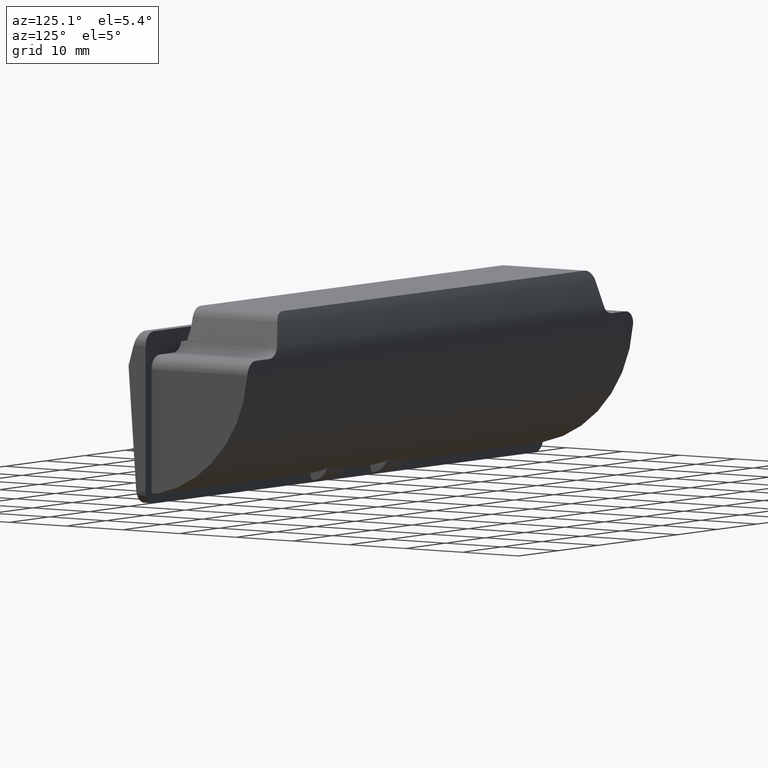
[diagram: clean part render]
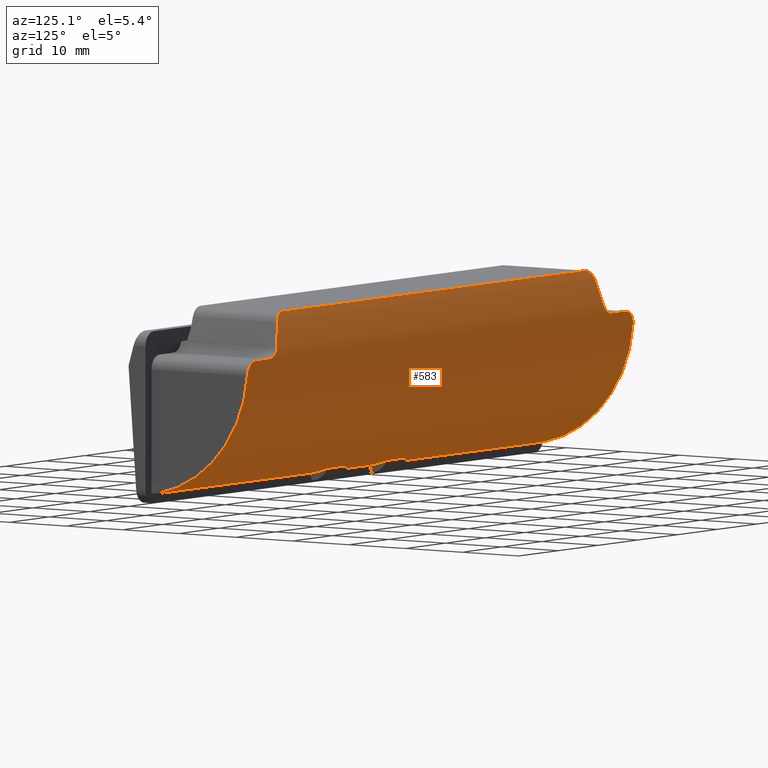
[diagram: same view with one face highlighted and labeled with its STEP entity id]
A machine part, auxiliary view. The second image highlights one B-rep face of the part: STEP entity #583.
In plain terms, the highlighted cylindrical surface (partial cylindrical patch) has radius 20 mm, axis along (-1, 0, 0).
Its self-contained STEP definition (entity closure, byte-faithful):
#5 = DIRECTION ( 'NONE',  ( 1.000000000000000000, -0.0000000000000000000, -0.0000000000000000000 ) ) ;
#29 = CARTESIAN_POINT ( 'NONE',  ( -42.76305940867310800, 16.99591752676730000, -6.499999999999999100 ) ) ;
#30 = CARTESIAN_POINT ( 'NONE',  ( -38.86052458275078400, 15.83612961934067300, -0.1807655854775082600 ) ) ;
#36 = EDGE_CURVE ( 'NONE', #1107, #1397, #459, .T. ) ;
#58 = DIRECTION ( 'NONE',  ( 0.0000000000000000000, 0.0000000000000000000, -1.000000000000000000 ) ) ;
#71 = CARTESIAN_POINT ( 'NONE',  ( 48.09877708661533500, 16.99749686359290400, -7.270368793566437800 ) ) ;
#95 = CARTESIAN_POINT ( 'NONE',  ( -39.93440920544705400, 16.23109859924504800, -1.411828667703528100 ) ) ;
#97 = ORIENTED_EDGE ( 'NONE', *, *, #36, .F. ) ;
#106 = EDGE_CURVE ( 'NONE', #2253, #563, #579, .T. ) ;
#123 = ORIENTED_EDGE ( 'NONE', *, *, #106, .T. ) ;
#138 = CARTESIAN_POINT ( 'NONE',  ( 39.87256500536617700, 16.17369632498519700, -1.210834880760012400 ) ) ;
#139 = LINE ( 'NONE', #1245, #2233 ) ;
#144 = VERTEX_POINT ( 'NONE', #1478 ) ;
#192 = ORIENTED_EDGE ( 'NONE', *, *, #437, .F. ) ;
#208 = VERTEX_POINT ( 'NONE', #889 ) ;
#214 = VECTOR ( 'NONE', #1113, 1000.000000000000000 ) ;
#228 = ORIENTED_EDGE ( 'NONE', *, *, #1104, .F. ) ;
#247 = CARTESIAN_POINT ( 'NONE',  ( -38.55992765960833400, 15.79636537698325700, -0.07049077837578729400 ) ) ;
#251 = B_SPLINE_CURVE_WITH_KNOTS ( 'NONE', 3,
 ( #1060, #1908, #862, #2327, #1072, #2547, #1272, #30, #1481, #247, #1699, #467, #1918, #663 ),
 .UNSPECIFIED., .F., .F.,
 ( 4, 2, 2, 2, 2, 2, 4 ),
 ( 6.505213034913026600E-019, 0.0006451127414014700400, 0.001290225482802939400, 0.001612781853503675500, 0.001935338224204411300, 0.002257894594905146700, 0.002580450965605883200 ),
 .UNSPECIFIED. ) ;
#264 = VERTEX_POINT ( 'NONE', #453 ) ;
#274 = CIRCLE ( 'NONE', #729, 20.00000000000000000 ) ;
#280 = CARTESIAN_POINT ( 'NONE',  ( 46.76204048342106700, 16.99619143582836100, -6.512963977569591600 ) ) ;
#282 = VERTEX_POINT ( 'NONE', #389 ) ;
#288 = CARTESIAN_POINT ( 'NONE',  ( -38.02285107557914800, 15.77055281608030100, -9.298682801528459900E-008 ) ) ;
#299 = CARTESIAN_POINT ( 'NONE',  ( 951.5000000000000000, 0.9999999887767840900, -26.49999994455625100 ) ) ;
#319 = CARTESIAN_POINT ( 'NONE',  ( -41.06559079455280400, 16.91739110543665300, -5.088171332296570700 ) ) ;
#331 = CARTESIAN_POINT ( 'NONE',  ( -48.50000000000000000, -2.999999999999885000, -6.904081999999879900 ) ) ;
#336 = CARTESIAN_POINT ( 'NONE',  ( 951.5000000000000000, 0.9999999887767840900, -26.49999994455625100 ) ) ;
#341 = CARTESIAN_POINT ( 'NONE',  ( 1004.999999999999900, 4.000000062152075500, -25.63907597197309900 ) ) ;
#343 = DIRECTION ( 'NONE',  ( 1.000000000000000000, 0.0000000000000000000, 0.0000000000000000000 ) ) ;
#347 = VECTOR ( 'NONE', #2384, 1000.000000000000000 ) ;
#370 = EDGE_LOOP ( 'NONE', ( #2257, #2187, #1206, #1758, #1259, #2321, #228, #2159, #2671, #838, #97, #1168, #1724, #123, #2286, #1227, #2349, #1792, #192, #744, #1651, #2386 ) ) ;
#380 = B_SPLINE_CURVE_WITH_KNOTS ( 'NONE', 3,
 ( #1657, #1009, #1765, #769, #1539, #951, #1152, #2400 ),
 .UNSPECIFIED., .F., .F.,
 ( 4, 2, 2, 4 ),
 ( 1.323970232273443100E-017, 0.0006331568812266378400, 0.001266313762453262400, 0.002532627524906495000 ),
 .UNSPECIFIED. ) ;
#381 = CARTESIAN_POINT ( 'NONE',  ( -40.68248205360136200, 16.80387231742312400, -3.843067077504157800 ) ) ;
#388 = EDGE_CURVE ( 'NONE', #1074, #208, #380, .T. ) ;
#389 = CARTESIAN_POINT ( 'NONE',  ( 48.50000000000000000, 0.9999999887767840900, -26.49999994455625100 ) ) ;
#437 = EDGE_CURVE ( 'NONE', #1485, #714, #1448, .T. ) ;
#452 = DIRECTION ( 'NONE',  ( 1.000000000000000000, 0.0000000000000000000, 0.0000000000000000000 ) ) ;
#453 = CARTESIAN_POINT ( 'NONE',  ( 4.999999999999889900, 1.000000000000114100, -26.50000000000000000 ) ) ;
#459 = CIRCLE ( 'NONE', #819, 20.00000000000000000 ) ;
#463 = CARTESIAN_POINT ( 'NONE',  ( -42.14922429268468600, 16.99195792532859900, -6.333054762345854600 ) ) ;
#467 = CARTESIAN_POINT ( 'NONE',  ( -38.24006441743337300, 15.77382645613010000, -0.008881518017544895800 ) ) ;
#487 = DIRECTION ( 'NONE',  ( -1.000000000000000000, 0.0000000000000000000, 0.0000000000000000000 ) ) ;
#489 = CARTESIAN_POINT ( 'NONE',  ( -10.00000000000000000, 1.000000000000114100, -26.50000000000000000 ) ) ;
#508 = CARTESIAN_POINT ( 'NONE',  ( -40.30431718849908400, 16.57443814387914900, -2.614030430148027100 ) ) ;
#531 = CARTESIAN_POINT ( 'NONE',  ( 951.5000000000000000, 16.99591752676730000, -6.500000000000000000 ) ) ;
#543 = DIRECTION ( 'NONE',  ( 0.0000000000000000000, 0.0000000000000000000, -1.000000000000000000 ) ) ;
#549 = DIRECTION ( 'NONE',  ( -1.000000000000000000, 0.0000000000000000000, 0.0000000000000000000 ) ) ;
#560 = CARTESIAN_POINT ( 'NONE',  ( 38.02285107557914800, 15.77055281608030100, -9.298682801528459900E-008 ) ) ;
#563 = VERTEX_POINT ( 'NONE', #665 ) ;
#579 = B_SPLINE_CURVE_WITH_KNOTS ( 'NONE', 3,
 ( #1851, #603, #815, #1938, #2710, #2562, #2535, #2498, #2473, #2334, #1417, #2694, #2281, #2272 ),
 .UNSPECIFIED., .F., .F.,
 ( 4, 2, 2, 2, 2, 2, 4 ),
 ( 0.0000000000000000000, 0.0003907501717874987100, 0.0007815003435749974100, 0.001172250515362500800, 0.001563000687150004600, 0.002344501030725011600, 0.003126001374300018700 ),
 .UNSPECIFIED. ) ;
#583 = ADVANCED_FACE ( 'NONE', ( #2247 ), #1130, .T. ) ;
#603 = CARTESIAN_POINT ( 'NONE',  ( -48.50000000000000000, 16.94676708137947700, -8.368301468287191000 ) ) ;
#661 = CARTESIAN_POINT ( 'NONE',  ( -41.44698264328089000, 16.97413980235233300, -5.856360238779716500 ) ) ;
#663 = CARTESIAN_POINT ( 'NONE',  ( -38.02285107557914800, 15.77055281608030100, -9.298682801528459900E-008 ) ) ;
#665 = CARTESIAN_POINT ( 'NONE',  ( -46.50000000000000000, 16.99591752676730000, -6.500000000000000000 ) ) ;
#703 = CARTESIAN_POINT ( 'NONE',  ( 48.49999999999999300, 16.95731061156230300, -8.236591578223645600 ) ) ;
#714 = VERTEX_POINT ( 'NONE', #288 ) ;
#719 = CARTESIAN_POINT ( 'NONE',  ( -42.97714892442095200, 16.99591752676730000, -6.500000000000000000 ) ) ;
#729 = AXIS2_PLACEMENT_3D ( 'NONE', #331, #1779, #543 ) ;
#744 = ORIENTED_EDGE ( 'NONE', *, *, #2600, .T. ) ;
#769 = CARTESIAN_POINT ( 'NONE',  ( 41.46747890650132000, 16.97184718278692400, -5.829035949646185900 ) ) ;
#770 = VERTEX_POINT ( 'NONE', #719 ) ;
#815 = CARTESIAN_POINT ( 'NONE',  ( -48.48711791078927300, 16.95583000208559800, -8.238693362466824200 ) ) ;
#819 = AXIS2_PLACEMENT_3D ( 'NONE', #2514, #1247, #1564 ) ;
#829 = CARTESIAN_POINT ( 'NONE',  ( 38.02285107557914800, 15.77055281608030100, -9.298682801528459900E-008 ) ) ;
#838 = ORIENTED_EDGE ( 'NONE', *, *, #863, .F. ) ;
#862 = CARTESIAN_POINT ( 'NONE',  ( -39.78134190663197200, 16.11705377471152900, -1.024385994381265200 ) ) ;
#863 = EDGE_CURVE ( 'NONE', #1397, #1228, #2342, .T. ) ;
#869 = CARTESIAN_POINT ( 'NONE',  ( -41.06559079455280400, 16.91739110543665300, -5.088171332296570700 ) ) ;
#873 = AXIS2_PLACEMENT_3D ( 'NONE', #1565, #343, #1794 ) ;
#877 = CARTESIAN_POINT ( 'NONE',  ( 48.44717360150968900, 16.97279077857805900, -7.974383364555017700 ) ) ;
#878 = CARTESIAN_POINT ( 'NONE',  ( -4.999999999999889900, 0.9999999887767840900, -26.49999994455625100 ) ) ;
#889 = CARTESIAN_POINT ( 'NONE',  ( 42.97714892442095200, 16.99591752676730000, -6.500000000000000000 ) ) ;
#896 = EDGE_CURVE ( 'NONE', #1027, #1076, #930, .T. ) ;
#897 = VECTOR ( 'NONE', #2686, 1000.000000000000000 ) ;
#911 = CARTESIAN_POINT ( 'NONE',  ( 47.50170461106218800, 16.99964110874184400, -6.764007834996514900 ) ) ;
#921 = CARTESIAN_POINT ( 'NONE',  ( 48.50000000000000000, 16.93622446044585000, -8.500000000000000000 ) ) ;
#930 =( BOUNDED_CURVE ( )  B_SPLINE_CURVE ( 3, ( #319, #381, #508, #95 ),
 .UNSPECIFIED., .F., .F. ) 
 B_SPLINE_CURVE_WITH_KNOTS ( ( 4, 4 ),
 ( 1.661717075726932600, 1.848983186180908500 ),
 .UNSPECIFIED. ) 
 CURVE ( )  GEOMETRIC_REPRESENTATION_ITEM ( )  RATIONAL_B_SPLINE_CURVE ( ( 1.000000000000000000, 0.9970797514463800600, 0.9970797514463800600, 1.000000000000000000 ) ) 
 REPRESENTATION_ITEM ( '' )  );
#938 = CARTESIAN_POINT ( 'NONE',  ( 47.71910502136550700, 17.00013099349136800, -6.909131095389001100 ) ) ;
#951 = CARTESIAN_POINT ( 'NONE',  ( 42.12906194018982800, 16.99422179810676800, -6.360621273165018700 ) ) ;
#953 = CARTESIAN_POINT ( 'NONE',  ( 47.82204003619807500, 17.00001244017056100, -6.993603501126028900 ) ) ;
#968 = CARTESIAN_POINT ( 'NONE',  ( 38.86399037794628700, 15.83327528678671000, -0.1725808857200680500 ) ) ;
#1009 = CARTESIAN_POINT ( 'NONE',  ( 41.12831283387328100, 16.93597624621861900, -5.292018098708322100 ) ) ;
#1011 = CARTESIAN_POINT ( 'NONE',  ( -48.50000000000000000, 16.93622446044585000, -8.500000000000000000 ) ) ;
#1013 = VERTEX_POINT ( 'NONE', #1411 ) ;
#1014 =( BOUNDED_CURVE ( )  B_SPLINE_CURVE ( 3, ( #1884, #1836, #2464, #1891 ),
 .UNSPECIFIED., .F., .F. ) 
 B_SPLINE_CURVE_WITH_KNOTS ( ( 4, 4 ),
 ( 1.292609467408882800, 1.479875577862859800 ),
 .UNSPECIFIED. ) 
 CURVE ( )  GEOMETRIC_REPRESENTATION_ITEM ( )  RATIONAL_B_SPLINE_CURVE ( ( 1.000000000000000000, 0.9970797514463800600, 0.9970797514463800600, 1.000000000000000000 ) ) 
 REPRESENTATION_ITEM ( '' )  );
#1027 = VERTEX_POINT ( 'NONE', #1744 ) ;
#1060 = CARTESIAN_POINT ( 'NONE',  ( -39.93440920544705400, 16.23109859924504800, -1.411828667703528100 ) ) ;
#1061 = AXIS2_PLACEMENT_3D ( 'NONE', #1686, #452, #1907 ) ;
#1072 = CARTESIAN_POINT ( 'NONE',  ( -39.39366547264560800, 15.95701891440790000, -0.5283850936243733600 ) ) ;
#1074 = VERTEX_POINT ( 'NONE', #2150 ) ;
#1075 = EDGE_CURVE ( 'NONE', #1290, #1455, #2194, .T. ) ;
#1076 = VERTEX_POINT ( 'NONE', #1766 ) ;
#1104 = EDGE_CURVE ( 'NONE', #264, #1755, #1445, .T. ) ;
#1107 = VERTEX_POINT ( 'NONE', #489 ) ;
#1113 = DIRECTION ( 'NONE',  ( 1.000000000000000000, -0.0000000000000000000, -0.0000000000000000000 ) ) ;
#1120 = DIRECTION ( 'NONE',  ( 1.000000000000000000, 0.0000000000000000000, 0.0000000000000000000 ) ) ;
#1128 = CARTESIAN_POINT ( 'NONE',  ( 47.38683415993130400, 16.99904791131154300, -6.702582801514868300 ) ) ;
#1130 = CYLINDRICAL_SURFACE ( 'NONE', #1265, 20.00000000000000000 ) ;
#1139 = CARTESIAN_POINT ( 'NONE',  ( 47.14463981084193700, 16.99778462804507500, -6.602205773296568700 ) ) ;
#1152 = CARTESIAN_POINT ( 'NONE',  ( 42.54897339214677700, 16.99591752676730400, -6.500000000000000000 ) ) ;
#1163 = CARTESIAN_POINT ( 'NONE',  ( 4.999999999999889900, -2.999999999999885000, -6.904081999999879900 ) ) ;
#1168 = ORIENTED_EDGE ( 'NONE', *, *, #1291, .T. ) ;
#1177 = CARTESIAN_POINT ( 'NONE',  ( 39.39350595183357500, 15.95688409764111900, -0.5279630662052113800 ) ) ;
#1196 = CARTESIAN_POINT ( 'NONE',  ( 48.50000000000000000, 16.93622446044585000, -8.500000000000000000 ) ) ;
#1202 = VERTEX_POINT ( 'NONE', #2196 ) ;
#1206 = ORIENTED_EDGE ( 'NONE', *, *, #2636, .F. ) ;
#1221 = EDGE_CURVE ( 'NONE', #563, #770, #2582, .T. ) ;
#1223 = VECTOR ( 'NONE', #2487, 1000.000000000000000 ) ;
#1227 = ORIENTED_EDGE ( 'NONE', *, *, #2497, .T. ) ;
#1228 = VERTEX_POINT ( 'NONE', #2182 ) ;
#1237 = B_SPLINE_CURVE_WITH_KNOTS ( 'NONE', 3,
 ( #1939, #29, #1696, #463, #1916, #661, #2123, #869 ),
 .UNSPECIFIED., .F., .F.,
 ( 4, 2, 2, 4 ),
 ( 4.919554663809511500E-017, 0.0006331561369566367400, 0.001266312273913224300, 0.002532624547826399100 ),
 .UNSPECIFIED. ) ;
#1245 = CARTESIAN_POINT ( 'NONE',  ( 951.5000000000000000, 16.99591752676730000, -6.500000000000000000 ) ) ;
#1247 = DIRECTION ( 'NONE',  ( 1.000000000000000000, 0.0000000000000000000, 0.0000000000000000000 ) ) ;
#1259 = ORIENTED_EDGE ( 'NONE', *, *, #2728, .T. ) ;
#1265 = AXIS2_PLACEMENT_3D ( 'NONE', #1827, #1371, #1367 ) ;
#1268 = LINE ( 'NONE', #341, #1767 ) ;
#1272 = CARTESIAN_POINT ( 'NONE',  ( -39.04873434057766000, 15.87120753375096500, -0.2798621316312425200 ) ) ;
#1290 = VERTEX_POINT ( 'NONE', #2678 ) ;
#1291 = EDGE_CURVE ( 'NONE', #1107, #1202, #2007, .T. ) ;
#1300 = EDGE_CURVE ( 'NONE', #282, #144, #2508, .T. ) ;
#1337 = CARTESIAN_POINT ( 'NONE',  ( 48.24776350419186600, 16.99276182481239800, -7.493480941418546600 ) ) ;
#1367 = DIRECTION ( 'NONE',  ( 0.0000000000000000000, 0.0000000000000000000, 1.000000000000000000 ) ) ;
#1371 = DIRECTION ( 'NONE',  ( -1.000000000000000000, 0.0000000000000000000, 0.0000000000000000000 ) ) ;
#1381 = CARTESIAN_POINT ( 'NONE',  ( 39.78103429481667100, 16.11683754911416200, -1.023665526120008900 ) ) ;
#1397 = VERTEX_POINT ( 'NONE', #2479 ) ;
#1411 = CARTESIAN_POINT ( 'NONE',  ( 39.93440920544714600, 16.23109859924500100, -1.411828667703484100 ) ) ;
#1417 = CARTESIAN_POINT ( 'NONE',  ( -47.50794472770861900, 16.99967936961402500, -6.753029200959460400 ) ) ;
#1445 = CIRCLE ( 'NONE', #1931, 20.00000000000000000 ) ;
#1448 = LINE ( 'NONE', #1754, #2516 ) ;
#1455 = VERTEX_POINT ( 'NONE', #1196 ) ;
#1478 = CARTESIAN_POINT ( 'NONE',  ( 10.00000000000000000, 0.9999999887767840900, -26.49999994455625100 ) ) ;
#1481 = CARTESIAN_POINT ( 'NONE',  ( -38.76280035599106100, 15.82107234745448000, -0.1388358063128303200 ) ) ;
#1485 = VERTEX_POINT ( 'NONE', #829 ) ;
#1495 = LINE ( 'NONE', #299, #347 ) ;
#1517 = CARTESIAN_POINT ( 'NONE',  ( 47.01763656620504900, 16.99712042784432600, -6.563758859357892400 ) ) ;
#1533 = EDGE_CURVE ( 'NONE', #1013, #1074, #1014, .T. ) ;
#1539 = CARTESIAN_POINT ( 'NONE',  ( 41.61596073444642500, 16.97907455406825900, -5.980694929827921900 ) ) ;
#1549 = DIRECTION ( 'NONE',  ( 1.000000000000000000, 0.0000000000000000000, 0.0000000000000000000 ) ) ;
#1556 = CARTESIAN_POINT ( 'NONE',  ( 46.63212450558823000, 16.99591752676729700, -6.499999999999999100 ) ) ;
#1564 = DIRECTION ( 'NONE',  ( 0.0000000000000000000, 0.0000000000000000000, -1.000000000000000000 ) ) ;
#1565 = CARTESIAN_POINT ( 'NONE',  ( 10.00000000000000000, -2.999999999999885000, -6.904081999999879900 ) ) ;
#1571 = CARTESIAN_POINT ( 'NONE',  ( 46.50000000000000000, 16.99591752676730000, -6.500000000000000000 ) ) ;
#1590 = CARTESIAN_POINT ( 'NONE',  ( 39.93440920544714600, 16.23109859924500100, -1.411828667703484100 ) ) ;
#1592 = CARTESIAN_POINT ( 'NONE',  ( 951.5000000000000000, 0.9999999887767840900, -26.49999994455625100 ) ) ;
#1630 = AXIS2_PLACEMENT_3D ( 'NONE', #2119, #1549, #58 ) ;
#1651 = ORIENTED_EDGE ( 'NONE', *, *, #1533, .T. ) ;
#1657 = CARTESIAN_POINT ( 'NONE',  ( 41.06559079455290400, 16.91739110543660000, -5.088171332296539600 ) ) ;
#1662 = B_SPLINE_CURVE_WITH_KNOTS ( 'NONE', 3,
 ( #560, #1801, #2223, #968, #2438, #1177, #2668, #1381, #138, #1590 ),
 .UNSPECIFIED., .F., .F.,
 ( 4, 2, 2, 2, 4 ),
 ( 1.490855230150235500E-011, 0.0006451500051378366000, 0.001290299995367120900, 0.001935449985596405400, 0.002580599975825689600 ),
 .UNSPECIFIED. ) ;
#1686 = CARTESIAN_POINT ( 'NONE',  ( 48.50000000000000000, -2.999999999999885000, -6.904081999999879900 ) ) ;
#1696 = CARTESIAN_POINT ( 'NONE',  ( -42.55467710219135600, 16.99532353790957000, -6.466485829345439000 ) ) ;
#1699 = CARTESIAN_POINT ( 'NONE',  ( -38.45385200079685700, 15.78668400528845900, -0.04399063201806845800 ) ) ;
#1724 = ORIENTED_EDGE ( 'NONE', *, *, #2721, .T. ) ;
#1744 = CARTESIAN_POINT ( 'NONE',  ( -41.06559079455280400, 16.91739110543665300, -5.088171332296570700 ) ) ;
#1750 = EDGE_CURVE ( 'NONE', #1942, #1228, #2067, .T. ) ;
#1754 = CARTESIAN_POINT ( 'NONE',  ( 951.5000000000000000, 15.77055281608030100, -9.298682801528459900E-008 ) ) ;
#1755 = VERTEX_POINT ( 'NONE', #1799 ) ;
#1758 = ORIENTED_EDGE ( 'NONE', *, *, #1300, .T. ) ;
#1765 = CARTESIAN_POINT ( 'NONE',  ( 41.22126920230810000, 16.95006745615613400, -5.480982425902891600 ) ) ;
#1766 = CARTESIAN_POINT ( 'NONE',  ( -39.93440920544705400, 16.23109859924504800, -1.411828667703528100 ) ) ;
#1767 = VECTOR ( 'NONE', #549, 1000.000000000000000 ) ;
#1779 = DIRECTION ( 'NONE',  ( 1.000000000000000000, 0.0000000000000000000, 0.0000000000000000000 ) ) ;
#1792 = ORIENTED_EDGE ( 'NONE', *, *, #2445, .T. ) ;
#1794 = DIRECTION ( 'NONE',  ( 0.0000000000000000000, 0.0000000000000000000, -1.000000000000000000 ) ) ;
#1799 = CARTESIAN_POINT ( 'NONE',  ( 4.999999999999889900, 4.000000062152075500, -25.63907597197309900 ) ) ;
#1801 = CARTESIAN_POINT ( 'NONE',  ( 38.24110278631852800, 15.77055281608030100, -4.364337260727780900E-015 ) ) ;
#1827 = CARTESIAN_POINT ( 'NONE',  ( 951.5000000000000000, -2.999999999999885000, -6.904081999999879900 ) ) ;
#1836 = CARTESIAN_POINT ( 'NONE',  ( 40.30431718849918400, 16.57443814387914200, -2.614030430147982200 ) ) ;
#1851 = CARTESIAN_POINT ( 'NONE',  ( -48.50000000000000000, 16.93622446044585000, -8.500000000000000000 ) ) ;
#1869 = CIRCLE ( 'NONE', #873, 20.00000000000000000 ) ;
#1884 = CARTESIAN_POINT ( 'NONE',  ( 39.93440920544714600, 16.23109859924500100, -1.411828667703484100 ) ) ;
#1891 = CARTESIAN_POINT ( 'NONE',  ( 41.06559079455290400, 16.91739110543660000, -5.088171332296539600 ) ) ;
#1907 = DIRECTION ( 'NONE',  ( 0.0000000000000000000, 0.0000000000000000000, -1.000000000000000000 ) ) ;
#1908 = CARTESIAN_POINT ( 'NONE',  ( -39.87253851499768600, 16.17367173727296500, -1.210748787003851800 ) ) ;
#1916 = CARTESIAN_POINT ( 'NONE',  ( -41.96059040028066500, 16.98922125024468600, -6.235479545635127100 ) ) ;
#1918 = CARTESIAN_POINT ( 'NONE',  ( -38.13203837413483700, 15.77055278193687600, -1.589824162786656500E-010 ) ) ;
#1931 = AXIS2_PLACEMENT_3D ( 'NONE', #1163, #1120, #2138 ) ;
#1938 = CARTESIAN_POINT ( 'NONE',  ( -48.43653338965130200, 16.97125844430574300, -7.983514587849691100 ) ) ;
#1939 = CARTESIAN_POINT ( 'NONE',  ( -42.97714892442095200, 16.99591752676730000, -6.500000000000000000 ) ) ;
#1942 = VERTEX_POINT ( 'NONE', #878 ) ;
#1950 = VECTOR ( 'NONE', #2720, 1000.000000000000000 ) ;
#1987 = CARTESIAN_POINT ( 'NONE',  ( -1004.999999999999900, 4.000000062152075500, -25.63907597197309900 ) ) ;
#2007 = LINE ( 'NONE', #336, #897 ) ;
#2067 = CIRCLE ( 'NONE', #1630, 20.00000000000000000 ) ;
#2119 = CARTESIAN_POINT ( 'NONE',  ( -4.999999999999889900, -2.999999999999885000, -6.904081999999879900 ) ) ;
#2123 = CARTESIAN_POINT ( 'NONE',  ( -41.19103741495373300, 16.95456214014837900, -5.495873125845988300 ) ) ;
#2130 = CIRCLE ( 'NONE', #1061, 20.00000000000000000 ) ;
#2138 = DIRECTION ( 'NONE',  ( 0.0000000000000000000, 0.0000000000000000000, -1.000000000000000000 ) ) ;
#2150 = CARTESIAN_POINT ( 'NONE',  ( 41.06559079455290400, 16.91739110543660000, -5.088171332296539600 ) ) ;
#2159 = ORIENTED_EDGE ( 'NONE', *, *, #2675, .T. ) ;
#2182 = CARTESIAN_POINT ( 'NONE',  ( -4.999999999999889900, 4.000000062152075500, -25.63907597197309900 ) ) ;
#2187 = ORIENTED_EDGE ( 'NONE', *, *, #1075, .T. ) ;
#2194 = B_SPLINE_CURVE_WITH_KNOTS ( 'NONE', 3,
 ( #1571, #1556, #280, #1517, #1139, #1128, #911, #938, #953, #71, #1337, #877, #703, #921 ),
 .UNSPECIFIED., .F., .F.,
 ( 4, 2, 2, 2, 2, 2, 4 ),
 ( 0.0000000000000000000, 0.0003907463421337453600, 0.0007814926842674907100, 0.001172239026401236100, 0.001562985368534981400, 0.002344478052802455200, 0.003125970737069929400 ),
 .UNSPECIFIED. ) ;
#2196 = CARTESIAN_POINT ( 'NONE',  ( -48.50000000000000000, 0.9999999887767840900, -26.49999994455625100 ) ) ;
#2223 = CARTESIAN_POINT ( 'NONE',  ( 38.45298691171899500, 15.78346378099020000, -0.03481321302765701100 ) ) ;
#2233 = VECTOR ( 'NONE', #5, 1000.000000000000000 ) ;
#2247 = FACE_OUTER_BOUND ( 'NONE', #370, .T. ) ;
#2253 = VERTEX_POINT ( 'NONE', #1011 ) ;
#2257 = ORIENTED_EDGE ( 'NONE', *, *, #2393, .T. ) ;
#2272 = CARTESIAN_POINT ( 'NONE',  ( -46.50000000000000000, 16.99591752676730000, -6.500000000000000000 ) ) ;
#2281 = CARTESIAN_POINT ( 'NONE',  ( -46.76424317545183800, 16.99591752676735400, -6.500000000000001800 ) ) ;
#2286 = ORIENTED_EDGE ( 'NONE', *, *, #1221, .T. ) ;
#2321 = ORIENTED_EDGE ( 'NONE', *, *, #2571, .T. ) ;
#2324 = CARTESIAN_POINT ( 'NONE',  ( 10.00000000000000000, 4.000000062152070200, -25.63907597197309900 ) ) ;
#2327 = CARTESIAN_POINT ( 'NONE',  ( -39.54030579477323200, 16.00783739051501100, -0.6803622216487096300 ) ) ;
#2334 = CARTESIAN_POINT ( 'NONE',  ( -47.73094881383377700, 17.00085223214261300, -6.902238632271295400 ) ) ;
#2342 = LINE ( 'NONE', #1987, #1223 ) ;
#2349 = ORIENTED_EDGE ( 'NONE', *, *, #896, .T. ) ;
#2384 = DIRECTION ( 'NONE',  ( -1.000000000000000000, 0.0000000000000000000, 0.0000000000000000000 ) ) ;
#2386 = ORIENTED_EDGE ( 'NONE', *, *, #388, .T. ) ;
#2393 = EDGE_CURVE ( 'NONE', #208, #1290, #139, .T. ) ;
#2400 = CARTESIAN_POINT ( 'NONE',  ( 42.97714892442095200, 16.99591752676730000, -6.500000000000000000 ) ) ;
#2438 = CARTESIAN_POINT ( 'NONE',  ( 39.05185921062526000, 15.86878304254438300, -0.2717842199930743400 ) ) ;
#2445 = EDGE_CURVE ( 'NONE', #1076, #714, #251, .T. ) ;
#2464 = CARTESIAN_POINT ( 'NONE',  ( 40.68248205360144700, 16.80387231742311700, -3.843067077504119600 ) ) ;
#2473 = CARTESIAN_POINT ( 'NONE',  ( -48.00747741800336100, 16.99832086070244200, -7.179193077383674300 ) ) ;
#2479 = CARTESIAN_POINT ( 'NONE',  ( -10.00000000000000000, 4.000000062152070200, -25.63907597197309900 ) ) ;
#2487 = DIRECTION ( 'NONE',  ( 1.000000000000000000, 0.0000000000000000000, 0.0000000000000000000 ) ) ;
#2490 = VERTEX_POINT ( 'NONE', #2324 ) ;
#2497 = EDGE_CURVE ( 'NONE', #770, #1027, #1237, .T. ) ;
#2498 = CARTESIAN_POINT ( 'NONE',  ( -48.09185286596599000, 16.99672156927981000, -7.282181589608494900 ) ) ;
#2508 = LINE ( 'NONE', #1592, #1950 ) ;
#2514 = CARTESIAN_POINT ( 'NONE',  ( -10.00000000000000000, -2.999999999999885000, -6.904081999999879900 ) ) ;
#2516 = VECTOR ( 'NONE', #487, 1000.000000000000000 ) ;
#2535 = CARTESIAN_POINT ( 'NONE',  ( -48.23678623171144200, 16.99142571750275000, -7.499674646472360700 ) ) ;
#2547 = CARTESIAN_POINT ( 'NONE',  ( -39.13991950491869400, 15.89144521859305000, -0.3376661706682300700 ) ) ;
#2562 = CARTESIAN_POINT ( 'NONE',  ( -48.29808994753413700, 16.98774408911815600, -7.614546842698608500 ) ) ;
#2571 = EDGE_CURVE ( 'NONE', #2490, #1755, #1268, .T. ) ;
#2582 = LINE ( 'NONE', #531, #214 ) ;
#2600 = EDGE_CURVE ( 'NONE', #1485, #1013, #1662, .T. ) ;
#2636 = EDGE_CURVE ( 'NONE', #282, #1455, #2130, .T. ) ;
#2668 = CARTESIAN_POINT ( 'NONE',  ( 39.53884772754965100, 16.00725412810034200, -0.6785646483807114000 ) ) ;
#2671 = ORIENTED_EDGE ( 'NONE', *, *, #1750, .T. ) ;
#2675 = EDGE_CURVE ( 'NONE', #264, #1942, #1495, .T. ) ;
#2678 = CARTESIAN_POINT ( 'NONE',  ( 46.50000000000000000, 16.99591752676730000, -6.500000000000000000 ) ) ;
#2686 = DIRECTION ( 'NONE',  ( -1.000000000000000000, 0.0000000000000000000, 0.0000000000000000000 ) ) ;
#2694 = CARTESIAN_POINT ( 'NONE',  ( -47.02682401458891800, 16.99717035353479500, -6.553126608002369100 ) ) ;
#2710 = CARTESIAN_POINT ( 'NONE',  ( -48.39821091531448600, 16.97767162507139100, -7.856610480207183200 ) ) ;
#2720 = DIRECTION ( 'NONE',  ( -1.000000000000000000, 0.0000000000000000000, 0.0000000000000000000 ) ) ;
#2721 = EDGE_CURVE ( 'NONE', #1202, #2253, #274, .T. ) ;
#2728 = EDGE_CURVE ( 'NONE', #144, #2490, #1869, .T. ) ;